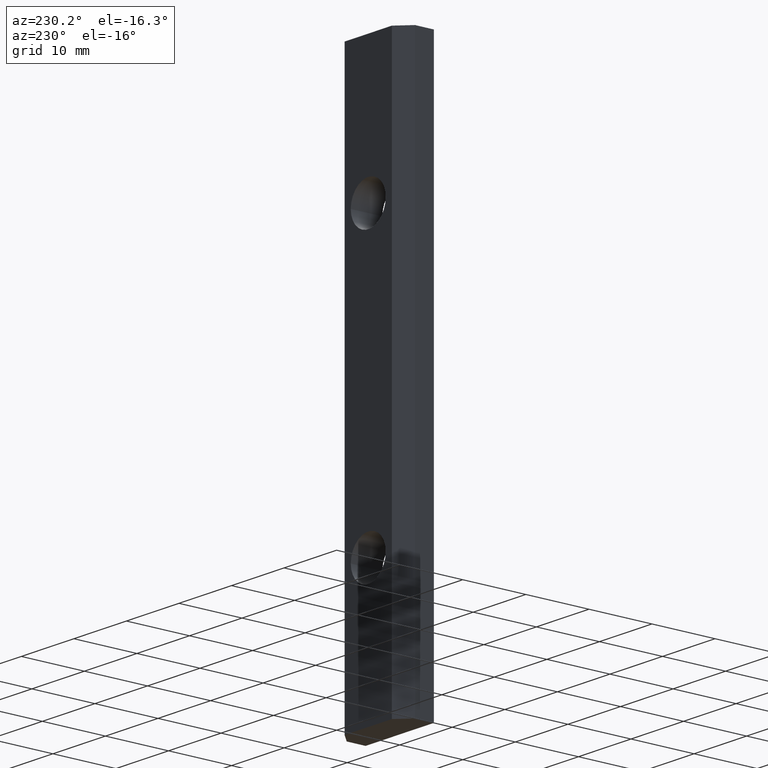
[diagram: clean part render]
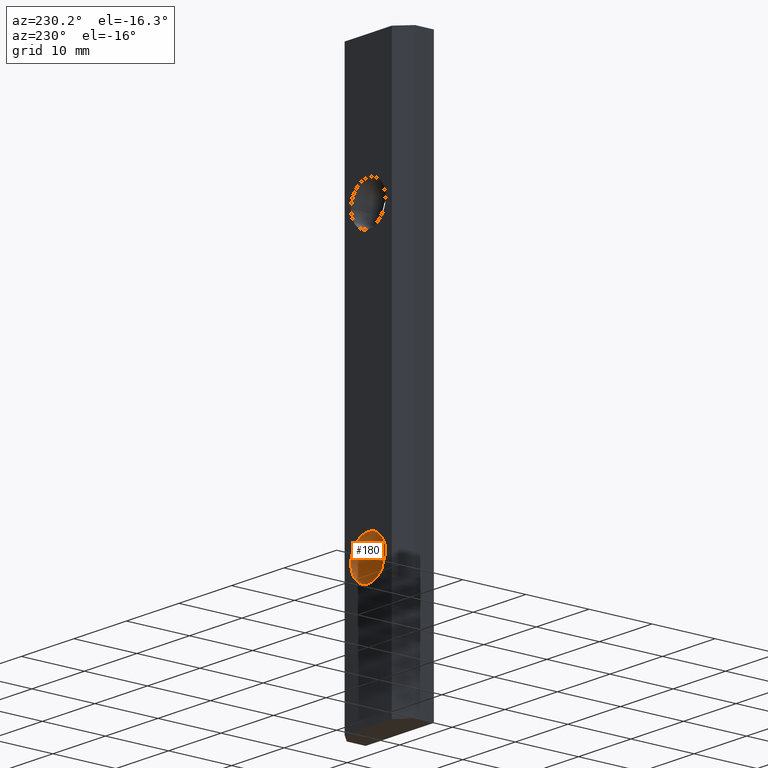
[diagram: same view with one face highlighted and labeled with its STEP entity id]
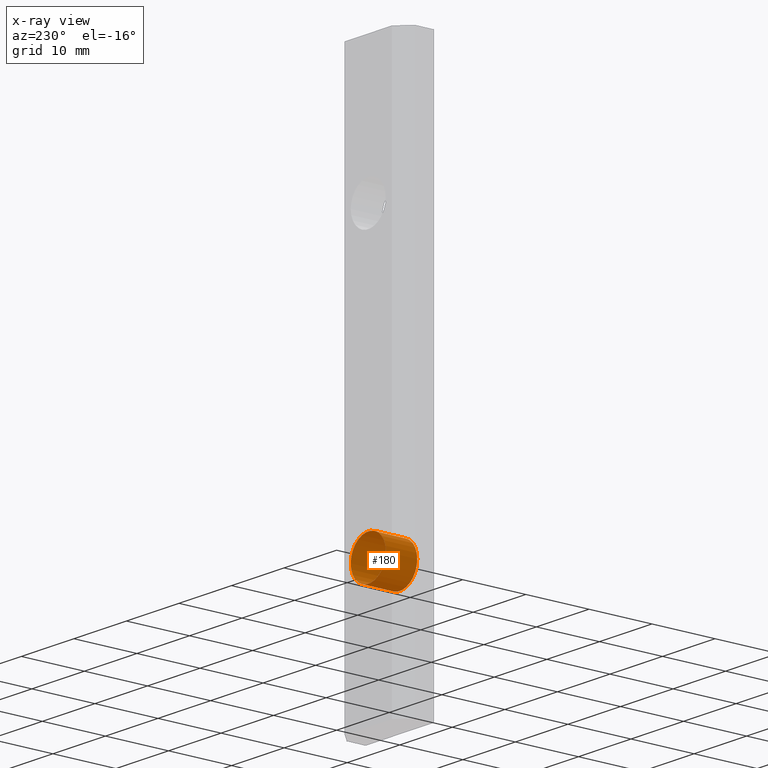
[diagram: x-ray of the same camera — body ghosted, the highlighted face saturated]
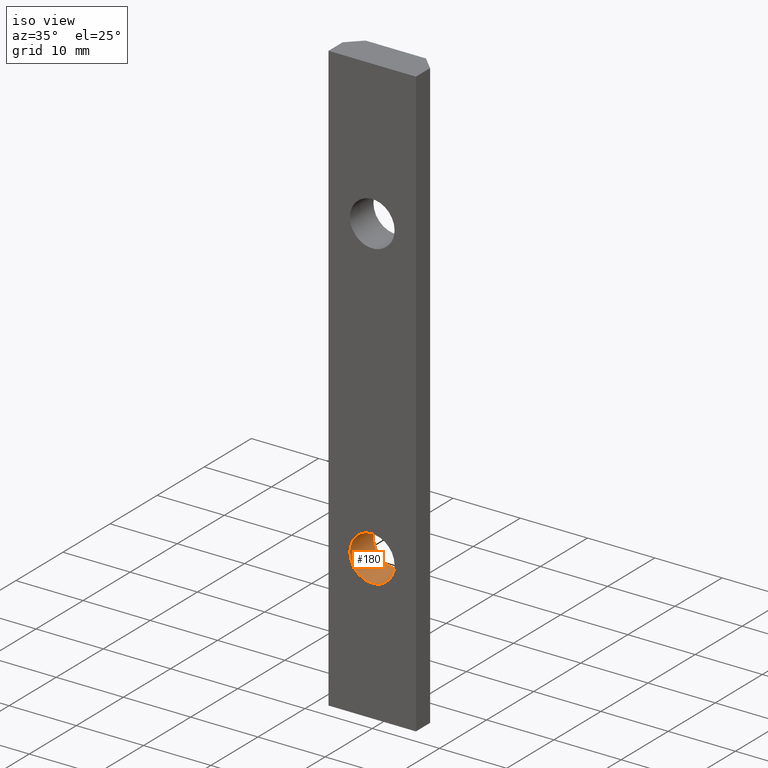
[diagram: same view with one face highlighted and labeled with its STEP entity id]
A machine part, auxiliary view. The second image highlights one B-rep face of the part: STEP entity #180.
The next image is the same camera in x-ray: the body ghosted, the highlighted face saturated — about 0% of this face is hidden behind the body in this view.
A second angle (iso view) of the same face is appended — the face is thin or edge-on in the first view.
In plain terms, the highlighted cylindrical surface (bore or boss wall) has radius 3.3235 mm, axis along (0, 1, 0).
Its self-contained STEP definition (entity closure, byte-faithful):
#60=FACE_BOUND('',#78,.T.);
#66=FACE_OUTER_BOUND('',#77,.T.);
#77=EDGE_LOOP('',(#135));
#78=EDGE_LOOP('',(#136));
#93=CIRCLE('',#195,3.3235);
#94=CIRCLE('',#196,3.3235);
#97=VERTEX_POINT('',#260);
#98=VERTEX_POINT('',#262);
#113=EDGE_CURVE('',#97,#97,#93,.T.);
#114=EDGE_CURVE('',#98,#98,#94,.T.);
#135=ORIENTED_EDGE('',*,*,#113,.F.);
#136=ORIENTED_EDGE('',*,*,#114,.F.);
#178=CYLINDRICAL_SURFACE('',#194,3.3235);
#180=ADVANCED_FACE('',(#66,#60),#178,.F.);
#194=AXIS2_PLACEMENT_3D('',#259,#213,#214);
#195=AXIS2_PLACEMENT_3D('',#261,#215,#216);
#196=AXIS2_PLACEMENT_3D('',#263,#217,#218);
#213=DIRECTION('center_axis',(0.,1.,0.));
#214=DIRECTION('ref_axis',(1.,0.,0.));
#215=DIRECTION('center_axis',(0.,1.,0.));
#216=DIRECTION('ref_axis',(1.,0.,0.));
#217=DIRECTION('center_axis',(0.,-1.,0.));
#218=DIRECTION('ref_axis',(1.,0.,0.));
#259=CARTESIAN_POINT('Origin',(0.,-84.095454429505,21.5));
#260=CARTESIAN_POINT('',(-3.3235,0.,21.5));
#261=CARTESIAN_POINT('Origin',(0.,0.,21.5));
#262=CARTESIAN_POINT('',(3.3235,5.,21.5));
#263=CARTESIAN_POINT('Origin',(0.,5.,21.5));